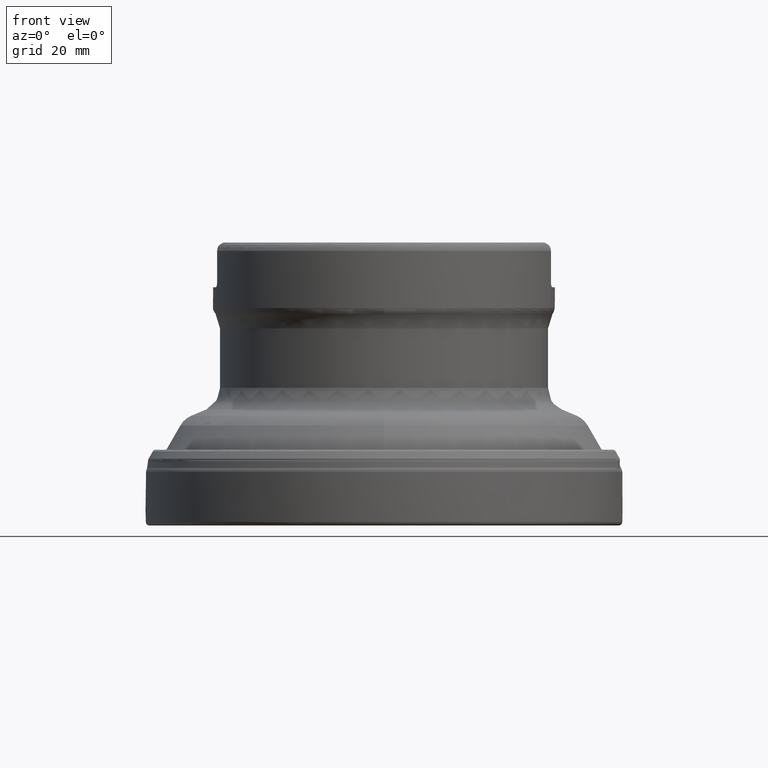
[diagram: clean part render]
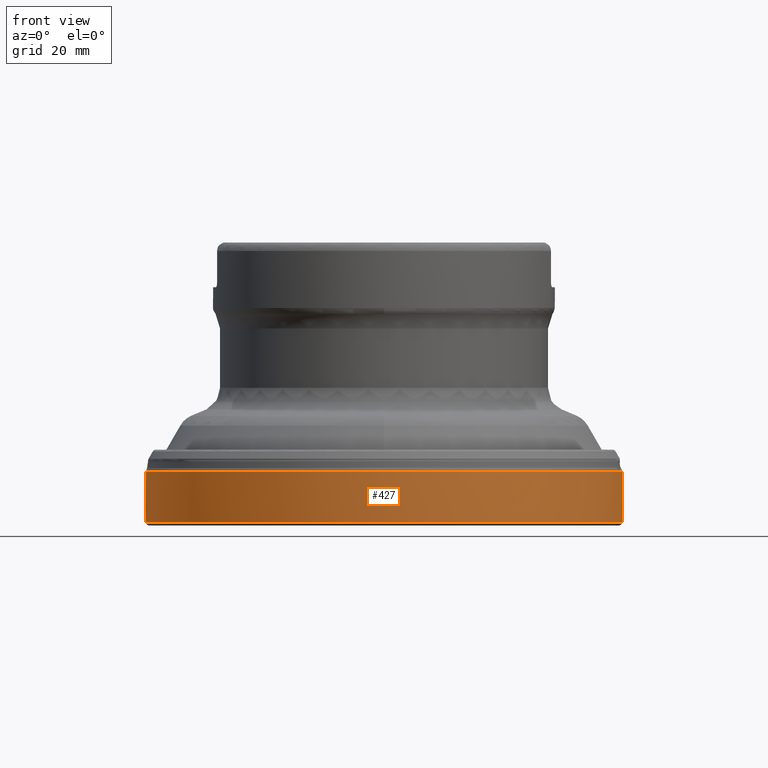
[diagram: same view with one face highlighted and labeled with its STEP entity id]
A machine part, front view. The second image highlights one B-rep face of the part: STEP entity #427.
In plain terms, the highlighted face is a SurfaceOfRevolution surface.
Its self-contained STEP definition (entity closure, byte-faithful):
#124=SURFACE_OF_REVOLUTION('',#1166,#145);
#145=AXIS1_PLACEMENT('',#2424,#1553);
#265=FACE_BOUND('',#585,.T.);
#266=FACE_BOUND('',#586,.T.);
#354=CIRCLE('',#1284,50.8000000553903);
#355=CIRCLE('',#1285,50.8000004126269);
#427=ADVANCED_FACE('',(#265,#266),#124,.F.);
#585=EDGE_LOOP('',(#875));
#586=EDGE_LOOP('',(#876));
#875=ORIENTED_EDGE('',*,*,#1098,.T.);
#876=ORIENTED_EDGE('',*,*,#1099,.F.);
#980=VERTEX_POINT('',#2395);
#981=VERTEX_POINT('',#2409);
#1098=EDGE_CURVE('',#980,#980,#354,.T.);
#1099=EDGE_CURVE('',#981,#981,#355,.T.);
#1166=B_SPLINE_CURVE_WITH_KNOTS('',3,(#2410,#2411,#2412,#2413,#2414,#2415,
#2416,#2417,#2418,#2419,#2420,#2421,#2422,#2423),.UNSPECIFIED.,.F.,.F.,
(4,1,1,1,1,1,1,1,1,1,1,4),(0.,0.228057409693129,0.368730032744676,0.509402655796224,
0.650075278847772,0.720411590373546,0.755579746136432,0.790747901899319,
0.861084213425093,0.931420524950867,0.966588680713754,1.),.UNSPECIFIED.);
#1284=AXIS2_PLACEMENT_3D('',#2394,#1548,#1549);
#1285=AXIS2_PLACEMENT_3D('',#2408,#1551,#1552);
#1548=DIRECTION('',(0.,0.,1.));
#1549=DIRECTION('',(1.,0.,0.));
#1551=DIRECTION('',(0.,0.,1.));
#1552=DIRECTION('',(1.,0.,0.));
#1553=DIRECTION('',(0.,0.,1.));
#2394=CARTESIAN_POINT('',(0.,0.,0.76160261400268));
#2395=CARTESIAN_POINT('',(50.8000000553903,0.,0.76160261400268));
#2408=CARTESIAN_POINT('',(0.,0.,11.4109209500144));
#2409=CARTESIAN_POINT('',(50.8000004126269,0.,11.4109209500144));
#2410=CARTESIAN_POINT('',(50.7304374437064,-2.6575772369195,11.4109217451152));
#2411=CARTESIAN_POINT('',(50.7401094731764,-2.87359421603582,10.6046017381222));
#2412=CARTESIAN_POINT('',(50.7449975973533,-3.22290028405529,9.30080124865517));
#2413=CARTESIAN_POINT('',(50.7280618937453,-3.70555261695302,7.49973167539704));
#2414=CARTESIAN_POINT('',(50.7005492708068,-4.10533104063736,6.00778498681985));
#2415=CARTESIAN_POINT('',(50.6676294887161,-4.43829878194784,4.76467428521028));
#2416=CARTESIAN_POINT('',(50.6396579139182,-4.67174437695134,3.89475571733017));
#2417=CARTESIAN_POINT('',(50.622270564353,-4.80443489446489,3.39749772067847));
#2418=CARTESIAN_POINT('',(50.6043506761055,-4.92579133631689,2.89735892323014));
#2419=CARTESIAN_POINT('',(50.5810542169802,-5.0601028683985,2.26814770771635));
#2420=CARTESIAN_POINT('',(50.5570676346315,-5.16966360475258,1.63421395194288));
#2421=CARTESIAN_POINT('',(50.5380095113932,-5.24061807661794,1.13102592498907));
#2422=CARTESIAN_POINT('',(50.5283283834617,-5.27555817950248,0.88262163021217));
#2423=CARTESIAN_POINT('',(50.5235458015304,-5.29257265120788,0.76160261400268));
#2424=CARTESIAN_POINT('',(0.,0.,0.));